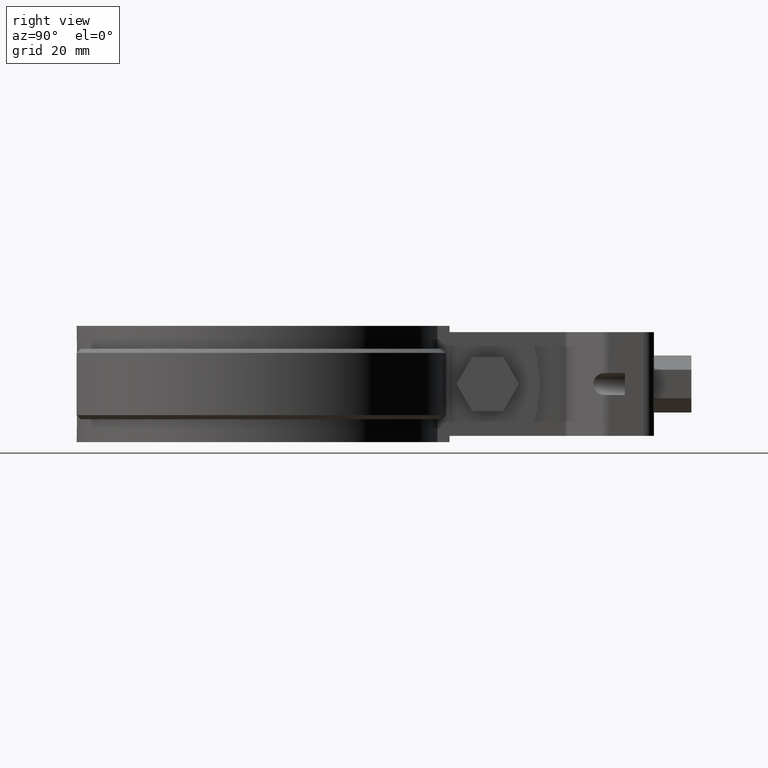
[diagram: clean part render]
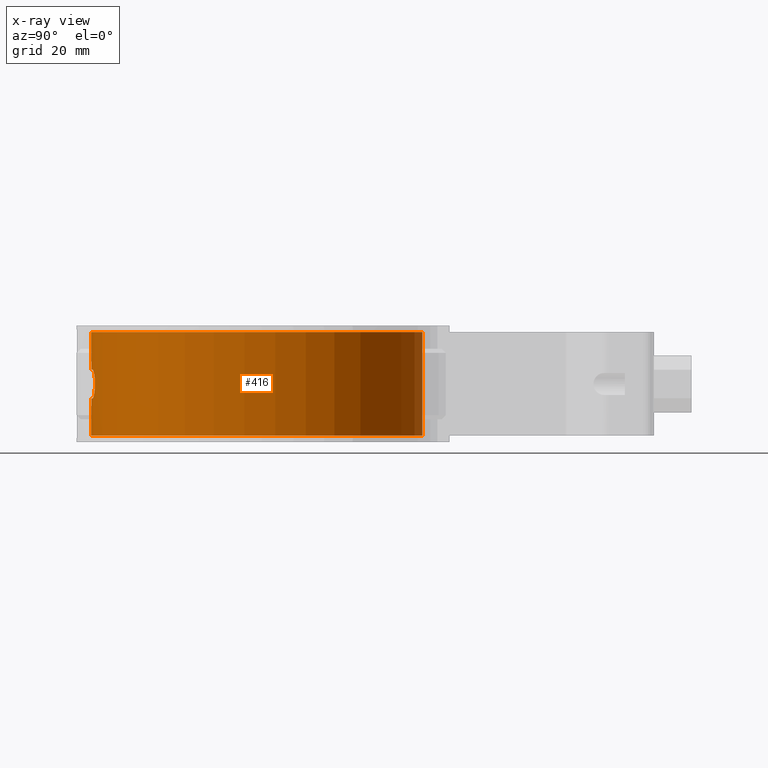
[diagram: x-ray — body ghosted, one internal face saturated and labeled with its STEP entity id]
A machine part, right view, then the same camera in x-ray: the body is ghosted and one INTERNAL B-rep face — a face not visible from any outside direction — is saturated and labeled: STEP entity #416.
In plain terms, the highlighted cylindrical surface (partial cylindrical patch) has radius 40.15 mm, axis along (0, 0, -1).
Its self-contained STEP definition (entity closure, byte-faithful):
#416 = ADVANCED_FACE( '', ( #739, #740 ), #741, .T. );
#739 = FACE_OUTER_BOUND( '', #1727, .T. );
#740 = FACE_BOUND( '', #1728, .T. );
#741 = CYLINDRICAL_SURFACE( '', #1729, 40.1500000000000 );
#1727 = EDGE_LOOP( '', ( #3363, #3364, #3365, #3366 ) );
#1728 = EDGE_LOOP( '', ( #3367, #3368, #3369, #3370, #3371, #3372, #3373, #3374, #3375, #3376, #3377, #3378, #3379, #3380, #3381, #3382 ) );
#1729 = AXIS2_PLACEMENT_3D( '', #3383, #3384, #3385 );
#3363 = ORIENTED_EDGE( '', *, *, #4587, .F. );
#3364 = ORIENTED_EDGE( '', *, *, #4585, .F. );
#3365 = ORIENTED_EDGE( '', *, *, #4588, .T. );
#3366 = ORIENTED_EDGE( '', *, *, #4421, .T. );
#3367 = ORIENTED_EDGE( '', *, *, #4465, .F. );
#3368 = ORIENTED_EDGE( '', *, *, #4581, .F. );
#3369 = ORIENTED_EDGE( '', *, *, #4429, .F. );
#3370 = ORIENTED_EDGE( '', *, *, #4580, .F. );
#3371 = ORIENTED_EDGE( '', *, *, #4579, .F. );
#3372 = ORIENTED_EDGE( '', *, *, #4577, .F. );
#3373 = ORIENTED_EDGE( '', *, *, #4575, .F. );
#3374 = ORIENTED_EDGE( '', *, *, #4573, .F. );
#3375 = ORIENTED_EDGE( '', *, *, #4571, .F. );
#3376 = ORIENTED_EDGE( '', *, *, #4569, .F. );
#3377 = ORIENTED_EDGE( '', *, *, #4567, .F. );
#3378 = ORIENTED_EDGE( '', *, *, #4449, .F. );
#3379 = ORIENTED_EDGE( '', *, *, #4446, .F. );
#3380 = ORIENTED_EDGE( '', *, *, #4440, .F. );
#3381 = ORIENTED_EDGE( '', *, *, #4437, .F. );
#3382 = ORIENTED_EDGE( '', *, *, #4443, .F. );
#3383 = CARTESIAN_POINT( '', ( 0.000000000000000, 0.000000000000000, -14.0000000000000 ) );
#3384 = DIRECTION( '', ( 0.000000000000000, 0.000000000000000, -1.00000000000000 ) );
#3385 = DIRECTION( '', ( 1.00000000000000, -6.07153216591882E-017, 0.000000000000000 ) );
#4421 = EDGE_CURVE( '', #5107, #5105, #5108, .T. );
#4429 = EDGE_CURVE( '', #5120, #5115, #5122, .T. );
#4437 = EDGE_CURVE( '', #5136, #5131, #5138, .T. );
#4440 = EDGE_CURVE( '', #5131, #5139, #5143, .F. );
#4443 = EDGE_CURVE( '', #5146, #5136, #5148, .F. );
#4446 = EDGE_CURVE( '', #5139, #5149, #5153, .T. );
#4449 = EDGE_CURVE( '', #5149, #5154, #5158, .F. );
#4465 = EDGE_CURVE( '', #5185, #5146, #5187, .T. );
#4567 = EDGE_CURVE( '', #5154, #5353, #5355, .T. );
#4569 = EDGE_CURVE( '', #5353, #5356, #5358, .F. );
#4571 = EDGE_CURVE( '', #5356, #5359, #5361, .T. );
#4573 = EDGE_CURVE( '', #5359, #5362, #5364, .F. );
#4575 = EDGE_CURVE( '', #5362, #5365, #5367, .T. );
#4577 = EDGE_CURVE( '', #5365, #5368, #5370, .F. );
#4579 = EDGE_CURVE( '', #5368, #5371, #5373, .T. );
#4580 = EDGE_CURVE( '', #5371, #5120, #5374, .F. );
#4581 = EDGE_CURVE( '', #5115, #5185, #5375, .F. );
#4585 = EDGE_CURVE( '', #5379, #5381, #5382, .T. );
#4587 = EDGE_CURVE( '', #5381, #5105, #5384, .T. );
#4588 = EDGE_CURVE( '', #5379, #5107, #5385, .T. );
#5105 = VERTEX_POINT( '', #7164 );
#5107 = VERTEX_POINT( '', #7166 );
#5108 = CIRCLE( '', #7167, 40.1500000000000 );
#5115 = VERTEX_POINT( '', #7177 );
#5120 = VERTEX_POINT( '', #7192 );
#5122 = B_SPLINE_CURVE_WITH_KNOTS( '', 3, ( #7195, #7196, #7197, #7198, #7199, #7200, #7201, #7202, #7203, #7204 ), .UNSPECIFIED., .F., .F., ( 4, 2, 2, 2, 4 ), ( 0.000000000000000, 0.000671575441678452, 0.00134315088335690, 0.00201472632503536, 0.00268630176671381 ), .UNSPECIFIED. );
#5131 = VERTEX_POINT( '', #7215 );
#5136 = VERTEX_POINT( '', #7254 );
#5138 = B_SPLINE_CURVE_WITH_KNOTS( '', 3, ( #7257, #7258, #7259, #7260, #7261, #7262, #7263, #7264, #7265, #7266, #7267, #7268, #7269, #7270, #7271, #7272, #7273, #7274, #7275, #7276, #7277, #7278, #7279, #7280, #7281, #7282, #7283, #7284, #7285, #7286, #7287, #7288, #7289, #7290 ), .UNSPECIFIED., .F., .F., ( 4, 2, 2, 2, 2, 2, 2, 2, 2, 2, 2, 2, 2, 2, 2, 2, 4 ), ( 0.000000000000000, 0.000688337356429975, 0.00137667471285995, 0.00206501206928992, 0.00275334942571990, 0.00344168678214987, 0.00413002413857985, 0.00481836149500982, 0.00550669885143979, 0.00619503620786977, 0.00688337356429974, 0.00757171092072971, 0.00826004827715969, 0.00894838563358966, 0.00963672299001963, 0.0103250603464496, 0.0110133977028796 ), .UNSPECIFIED. );
#5139 = VERTEX_POINT( '', #7291 );
#5143 = CIRCLE( '', #7296, 40.1500000000000 );
#5146 = VERTEX_POINT( '', #7299 );
#5148 = CIRCLE( '', #7302, 40.1500000000000 );
#5149 = VERTEX_POINT( '', #7303 );
#5153 = B_SPLINE_CURVE_WITH_KNOTS( '', 3, ( #7313, #7314, #7315, #7316, #7317, #7318 ), .UNSPECIFIED., .F., .F., ( 4, 2, 4 ), ( 0.000000000000000, 0.000335897798747085, 0.000671795597494171 ), .UNSPECIFIED. );
#5154 = VERTEX_POINT( '', #7319 );
#5158 = ELLIPSE( '', #7324, 182.905648859906, 40.1500000000000 );
#5185 = VERTEX_POINT( '', #7526 );
#5187 = B_SPLINE_CURVE_WITH_KNOTS( '', 3, ( #7529, #7530, #7531, #7532, #7533, #7534 ), .UNSPECIFIED., .F., .F., ( 4, 2, 4 ), ( 0.000000000000000, 0.000335898885575026, 0.000671797771150053 ), .UNSPECIFIED. );
#5353 = VERTEX_POINT( '', #8056 );
#5355 = B_SPLINE_CURVE_WITH_KNOTS( '', 3, ( #8059, #8060, #8061, #8062, #8063, #8064, #8065, #8066, #8067, #8068 ), .UNSPECIFIED., .F., .F., ( 4, 2, 2, 2, 4 ), ( 0.000000000000000, 0.000671575441678452, 0.00134315088335690, 0.00201472632503536, 0.00268630176671381 ), .UNSPECIFIED. );
#5356 = VERTEX_POINT( '', #8069 );
#5358 = ELLIPSE( '', #8072, 182.905742164324, 40.1500000000000 );
#5359 = VERTEX_POINT( '', #8073 );
#5361 = B_SPLINE_CURVE_WITH_KNOTS( '', 3, ( #8076, #8077, #8078, #8079, #8080, #8081 ), .UNSPECIFIED., .F., .F., ( 4, 2, 4 ), ( 0.000000000000000, 0.000335898885574942, 0.000671797771149884 ), .UNSPECIFIED. );
#5362 = VERTEX_POINT( '', #8082 );
#5364 = CIRCLE( '', #8085, 40.1500000000000 );
#5365 = VERTEX_POINT( '', #8086 );
#5367 = B_SPLINE_CURVE_WITH_KNOTS( '', 3, ( #8089, #8090, #8091, #8092, #8093, #8094, #8095, #8096, #8097, #8098, #8099, #8100, #8101, #8102, #8103, #8104, #8105, #8106, #8107, #8108, #8109, #8110, #8111, #8112, #8113, #8114, #8115, #8116, #8117, #8118, #8119, #8120, #8121, #8122 ), .UNSPECIFIED., .F., .F., ( 4, 2, 2, 2, 2, 2, 2, 2, 2, 2, 2, 2, 2, 2, 2, 2, 4 ), ( 0.000000000000000, 0.000688337329262038, 0.00137667465852408, 0.00206501198778611, 0.00275334931704815, 0.00344168664631019, 0.00413002397557223, 0.00481836130483426, 0.00550669863409630, 0.00619503596335834, 0.00688337329262038, 0.00757171062188242, 0.00826004795114445, 0.00894838528040649, 0.00963672260966853, 0.0103250599389306, 0.0110133972681926 ), .UNSPECIFIED. );
#5368 = VERTEX_POINT( '', #8123 );
#5370 = CIRCLE( '', #8126, 40.1500000000000 );
#5371 = VERTEX_POINT( '', #8127 );
#5373 = B_SPLINE_CURVE_WITH_KNOTS( '', 3, ( #8130, #8131, #8132, #8133, #8134, #8135 ), .UNSPECIFIED., .F., .F., ( 4, 2, 4 ), ( 0.000000000000000, 0.000335897719169336, 0.000671795438338672 ), .UNSPECIFIED. );
#5374 = ELLIPSE( '', #8136, 182.905648859919, 40.1500000000000 );
#5375 = ELLIPSE( '', #8137, 182.905742164363, 40.1500000000000 );
#5379 = VERTEX_POINT( '', #8143 );
#5381 = VERTEX_POINT( '', #8145 );
#5382 = CIRCLE( '', #8146, 40.1500000000000 );
#5384 = LINE( '', #8148, #8149 );
#5385 = LINE( '', #8150, #8151 );
#7164 = CARTESIAN_POINT( '', ( -6.51332560834300, 39.6181661554356, 12.5000000000000 ) );
#7166 = CARTESIAN_POINT( '', ( 6.51332560834299, 39.6181661554356, 12.5000000000000 ) );
#7167 = AXIS2_PLACEMENT_3D( '', #8995, #8996, #8997 );
#7177 = CARTESIAN_POINT( '', ( -0.975610000000007, -40.1381450135392, 4.71951199999999 ) );
#7192 = CARTESIAN_POINT( '', ( 0.975609757981830, -40.1381450194217, 4.71951218674745 ) );
#7195 = CARTESIAN_POINT( '', ( 0.975609757981830, -40.1381450194217, 4.71951218674745 ) );
#7196 = CARTESIAN_POINT( '', ( 0.925763103201913, -40.1393566071217, 4.94105278453070 ) );
#7197 = CARTESIAN_POINT( '', ( 0.802005694054189, -40.1423807442753, 5.13901842955320 ) );
#7198 = CARTESIAN_POINT( '', ( 0.447394136195560, -40.1478988670461, 5.42271131765126 ) );
#7199 = CARTESIAN_POINT( '', ( 0.227081605828657, -40.1500000027403, 5.50000009076298 ) );
#7200 = CARTESIAN_POINT( '', ( -0.227082574832846, -40.1499999972597, 5.49999991610412 ) );
#7201 = CARTESIAN_POINT( '', ( -0.447406558810134, -40.1478987000226, 5.42270368064493 ) );
#7202 = CARTESIAN_POINT( '', ( -0.802005172077475, -40.1423807261117, 5.13901686586167 ) );
#7203 = CARTESIAN_POINT( '', ( -0.925763382732391, -40.1393566006280, 4.94105262907644 ) );
#7204 = CARTESIAN_POINT( '', ( -0.975610000000007, -40.1381450135391, 4.71951199999999 ) );
#7215 = CARTESIAN_POINT( '', ( -4.99999999999995, -39.8374509726714, -3.49999999999999 ) );
#7254 = CARTESIAN_POINT( '', ( -4.99999999999995, -39.8374509726714, 3.49999999999999 ) );
#7257 = CARTESIAN_POINT( '', ( -4.99999999999995, -39.8374509726714, 3.49999999999999 ) );
#7258 = CARTESIAN_POINT( '', ( -5.23095860494482, -39.8084633493038, 3.49999999999999 ) );
#7259 = CARTESIAN_POINT( '', ( -5.45781297076318, -39.7779524642130, 3.47736556748964 ) );
#7260 = CARTESIAN_POINT( '', ( -5.90372421837641, -39.7142199347082, 3.38894468494546 ) );
#7261 = CARTESIAN_POINT( '', ( -6.12501644056399, -39.6806304739925, 3.32213368201289 ) );
#7262 = CARTESIAN_POINT( '', ( -6.54749251271770, -39.6131115037260, 3.14761870064422 ) );
#7263 = CARTESIAN_POINT( '', ( -6.74782653425954, -39.5793683268156, 3.04087849271291 ) );
#7264 = CARTESIAN_POINT( '', ( -7.12705538734702, -39.5128414770676, 2.78881190203172 ) );
#7265 = CARTESIAN_POINT( '', ( -7.30699771686771, -39.4798342861366, 2.64190872861820 ) );
#7266 = CARTESIAN_POINT( '', ( -7.63008020934946, -39.4186682536842, 2.32047593285882 ) );
#7267 = CARTESIAN_POINT( '', ( -7.77520246741427, -39.3901746414895, 2.14501047192483 ) );
#7268 = CARTESIAN_POINT( '', ( -8.03185666339945, -39.3386439806323, 1.76370597515165 ) );
#7269 = CARTESIAN_POINT( '', ( -8.14181611065924, -39.3159182752970, 1.55925557516007 ) );
#7270 = CARTESIAN_POINT( '', ( -8.31798764170714, -39.2790234222037, 1.13721164485078 ) );
#7271 = CARTESIAN_POINT( '', ( -8.38574167511884, -39.2645390128848, 0.916882287492957 ) );
#7272 = CARTESIAN_POINT( '', ( -8.47719385698053, -39.2448961222647, 0.461564622353175 ) );
#7273 = CARTESIAN_POINT( '', ( -8.49978618145731, -39.2399813317577, 0.232891640253044 ) );
#7274 = CARTESIAN_POINT( '', ( -8.50021082580472, -39.2398893469905, -0.226418737266414 ) );
#7275 = CARTESIAN_POINT( '', ( -8.47731854301144, -39.2448684643871, -0.459702949250360 ) );
#7276 = CARTESIAN_POINT( '', ( -8.38706339909590, -39.2642559843718, -0.911522981827331 ) );
#7277 = CARTESIAN_POINT( '', ( -8.32031352874219, -39.2785313050527, -1.13069012075308 ) );
#7278 = CARTESIAN_POINT( '', ( -8.14371721399383, -39.3155250332115, -1.55562828014230 ) );
#7279 = CARTESIAN_POINT( '', ( -8.03342513170298, -39.3383199762391, -1.76080986097333 ) );
#7280 = CARTESIAN_POINT( '', ( -7.77898464578656, -39.3894241615725, -2.13994552533918 ) );
#7281 = CARTESIAN_POINT( '', ( -7.63379203900635, -39.4179573308168, -2.31653087494202 ) );
#7282 = CARTESIAN_POINT( '', ( -7.30708660946897, -39.4798255607926, -2.64206955157897 ) );
#7283 = CARTESIAN_POINT( '', ( -7.13061900667858, -39.5121959119356, -2.78605609428601 ) );
#7284 = CARTESIAN_POINT( '', ( -6.75245701559200, -39.5785759907323, -3.03817952911609 ) );
#7285 = CARTESIAN_POINT( '', ( -6.54837063110575, -39.6129652578209, -3.14717295202816 ) );
#7286 = CARTESIAN_POINT( '', ( -6.12629712903811, -39.6804316751518, -3.32168725479000 ) );
#7287 = CARTESIAN_POINT( '', ( -5.90899761065161, -39.7134392243430, -3.38758058043028 ) );
#7288 = CARTESIAN_POINT( '', ( -5.46185115940373, -39.7774017464791, -3.47687669231663 ) );
#7289 = CARTESIAN_POINT( '', ( -5.23094629206818, -39.8084648946934, -3.49999999999999 ) );
#7290 = CARTESIAN_POINT( '', ( -4.99999999999995, -39.8374509726714, -3.49999999999999 ) );
#7291 = CARTESIAN_POINT( '', ( -1.64999999999996, -40.1160815633830, -3.50000000000000 ) );
#7296 = AXIS2_PLACEMENT_3D( '', #9020, #9021, #9022 );
#7299 = CARTESIAN_POINT( '', ( -1.65000998557365, -40.1160811526688, 3.50000000000000 ) );
#7302 = AXIS2_PLACEMENT_3D( '', #9027, #9028, #9029 );
#7303 = CARTESIAN_POINT( '', ( -1.16219500000001, -40.1331758372294, -3.89024399999999 ) );
#7313 = CARTESIAN_POINT( '', ( -1.64999999999996, -40.1160815633830, -3.50000000000000 ) );
#7314 = CARTESIAN_POINT( '', ( -1.53651884766713, -40.1207491154981, -3.49999999951295 ) );
#7315 = CARTESIAN_POINT( '', ( -1.42638050992229, -40.1247530663931, -3.53860710319743 ) );
#7316 = CARTESIAN_POINT( '', ( -1.24905299688644, -40.1306645423307, -3.68042118917928 ) );
#7317 = CARTESIAN_POINT( '', ( -1.18712650433726, -40.1324538592380, -3.77943731183597 ) );
#7318 = CARTESIAN_POINT( '', ( -1.16219500000001, -40.1331758372295, -3.89024399999999 ) );
#7319 = CARTESIAN_POINT( '', ( -0.975609757981835, -40.1381450194217, -4.71951218674743 ) );
#7324 = AXIS2_PLACEMENT_3D( '', #9035, #9036, #9037 );
#7526 = CARTESIAN_POINT( '', ( -1.16219512200782, -40.1331758336962, 3.89024390218754 ) );
#7529 = CARTESIAN_POINT( '', ( -1.16219512100910, -40.1331758337252, 3.89024390662629 ) );
#7530 = CARTESIAN_POINT( '', ( -1.18712661974119, -40.1324538558208, 3.77943724115345 ) );
#7531 = CARTESIAN_POINT( '', ( -1.24904982974928, -40.1306646447970, 3.68042431142773 ) );
#7532 = CARTESIAN_POINT( '', ( -1.42638086073695, -40.1247530578130, 3.53860630529693 ) );
#7533 = CARTESIAN_POINT( '', ( -1.53651887567475, -40.1207491143462, 3.50000000000000 ) );
#7534 = CARTESIAN_POINT( '', ( -1.65000000000002, -40.1160815633831, 3.50000000000000 ) );
#8056 = CARTESIAN_POINT( '', ( 0.975609999999998, -40.1381450135392, -4.71951200000000 ) );
#8059 = CARTESIAN_POINT( '', ( -0.975609757981835, -40.1381450194217, -4.71951218674743 ) );
#8060 = CARTESIAN_POINT( '', ( -0.925763103201921, -40.1393566071217, -4.94105278453069 ) );
#8061 = CARTESIAN_POINT( '', ( -0.802005694054198, -40.1423807442753, -5.13901842955318 ) );
#8062 = CARTESIAN_POINT( '', ( -0.447394136195574, -40.1478988670461, -5.42271131765126 ) );
#8063 = CARTESIAN_POINT( '', ( -0.227081605828673, -40.1500000027403, -5.50000009076297 ) );
#8064 = CARTESIAN_POINT( '', ( 0.227082574832831, -40.1499999972597, -5.49999991610413 ) );
#8065 = CARTESIAN_POINT( '', ( 0.447406558810120, -40.1478987000226, -5.42270368064494 ) );
#8066 = CARTESIAN_POINT( '', ( 0.802005172077463, -40.1423807261117, -5.13901686586167 ) );
#8067 = CARTESIAN_POINT( '', ( 0.925763382732379, -40.1393566006280, -4.94105262907645 ) );
#8068 = CARTESIAN_POINT( '', ( 0.975609999999998, -40.1381450135391, -4.71951200000000 ) );
#8069 = CARTESIAN_POINT( '', ( 1.16219512100914, -40.1331758337252, -3.89024390662629 ) );
#8072 = AXIS2_PLACEMENT_3D( '', #9183, #9184, #9185 );
#8073 = CARTESIAN_POINT( '', ( 1.65000000000003, -40.1160815633830, -3.49999999999999 ) );
#8076 = CARTESIAN_POINT( '', ( 1.16219512100914, -40.1331758337252, -3.89024390662629 ) );
#8077 = CARTESIAN_POINT( '', ( 1.18712661974122, -40.1324538558208, -3.77943724115347 ) );
#8078 = CARTESIAN_POINT( '', ( 1.24904982974928, -40.1306646447970, -3.68042431142778 ) );
#8079 = CARTESIAN_POINT( '', ( 1.42638086073690, -40.1247530578130, -3.53860630529699 ) );
#8080 = CARTESIAN_POINT( '', ( 1.53651887567479, -40.1207491143462, -3.50000000000002 ) );
#8081 = CARTESIAN_POINT( '', ( 1.65000000000003, -40.1160815633831, -3.50000000000002 ) );
#8082 = CARTESIAN_POINT( '', ( 5.00000044733089, -39.8374509165269, -3.49999999999999 ) );
#8085 = AXIS2_PLACEMENT_3D( '', #9188, #9189, #9190 );
#8086 = CARTESIAN_POINT( '', ( 5.00000000000005, -39.8374509726714, 3.50000000000000 ) );
#8089 = CARTESIAN_POINT( '', ( 5.00000044733089, -39.8374509165269, -3.49999999999999 ) );
#8090 = CARTESIAN_POINT( '', ( 5.23095904284814, -39.8084632917082, -3.49999997077358 ) );
#8091 = CARTESIAN_POINT( '', ( 5.45781339659013, -39.7779524057066, -3.47736551055169 ) );
#8092 = CARTESIAN_POINT( '', ( 5.90372461557896, -39.7142198755819, -3.38894457868282 ) );
#8093 = CARTESIAN_POINT( '', ( 6.12501682065867, -39.6806304152252, -3.32213355311184 ) );
#8094 = CARTESIAN_POINT( '', ( 6.54749285677823, -39.6131114467607, -3.14761853041377 ) );
#8095 = CARTESIAN_POINT( '', ( 6.74782685899012, -39.5793682713514, -3.04087830510302 ) );
#8096 = CARTESIAN_POINT( '', ( 7.12705567051453, -39.5128414258903, -2.78881168558283 ) );
#8097 = CARTESIAN_POINT( '', ( 7.30699797861348, -39.4798342376001, -2.64190849999459 ) );
#8098 = CARTESIAN_POINT( '', ( 7.63008042726410, -39.4186682114113, -2.32047568427144 ) );
#8099 = CARTESIAN_POINT( '', ( 7.77520266334605, -39.3901746027391, -2.14501021701762 ) );
#8100 = CARTESIAN_POINT( '', ( 8.03185681449030, -39.3386439497080, -1.76370571449662 ) );
#8101 = CARTESIAN_POINT( '', ( 8.14181624133898, -39.3159182481864, -1.55925531113451 ) );
#8102 = CARTESIAN_POINT( '', ( 8.31798773081204, -39.2790234032857, -1.13721138235150 ) );
#8103 = CARTESIAN_POINT( '', ( 8.38574174355353, -39.2645389982473, -0.916882032775492 ) );
#8104 = CARTESIAN_POINT( '', ( 8.47719388937391, -39.2448961152456, -0.461564375073776 ) );
#8105 = CARTESIAN_POINT( '', ( 8.49978619667144, -39.2399813284621, -0.232891399735694 ) );
#8106 = CARTESIAN_POINT( '', ( 8.50021081101746, -39.2398893501937, 0.226418958243930 ) );
#8107 = CARTESIAN_POINT( '', ( 8.47731851481216, -39.2448684704921, 0.459703157574320 ) );
#8108 = CARTESIAN_POINT( '', ( 8.38706334822708, -39.2642559952513, 0.911523169321746 ) );
#8109 = CARTESIAN_POINT( '', ( 8.32031346867799, -39.2785313177909, 1.13069029547550 ) );
#8110 = CARTESIAN_POINT( '', ( 8.14371714121275, -39.3155250483020, 1.55562842508181 ) );
#8111 = CARTESIAN_POINT( '', ( 8.03342505326523, -39.3383199922666, 1.76080999477712 ) );
#8112 = CARTESIAN_POINT( '', ( 7.77898456164721, -39.3894241781985, 2.13994563378794 ) );
#8113 = CARTESIAN_POINT( '', ( 7.63379195948778, -39.4179573462202, 2.31653096462968 ) );
#8114 = CARTESIAN_POINT( '', ( 7.30708652816376, -39.4798255758445, 2.64206962214098 ) );
#8115 = CARTESIAN_POINT( '', ( 7.13061892723623, -39.5121959262466, 2.78605615434060 ) );
#8116 = CARTESIAN_POINT( '', ( 6.75245694642353, -39.5785760025074, 3.03817956814161 ) );
#8117 = CARTESIAN_POINT( '', ( 6.54837057172783, -39.6129652676105, 3.14717298071497 ) );
#8118 = CARTESIAN_POINT( '', ( 6.12629707910306, -39.6804316828353, 3.32168727130082 ) );
#8119 = CARTESIAN_POINT( '', ( 5.90899756837397, -39.7134392305702, 3.38758059101687 ) );
#8120 = CARTESIAN_POINT( '', ( 5.46185113913602, -39.7774017491988, 3.47687669422055 ) );
#8121 = CARTESIAN_POINT( '', ( 5.23094628247947, -39.8084648958969, 3.50000000000000 ) );
#8122 = CARTESIAN_POINT( '', ( 5.00000000000005, -39.8374509726714, 3.50000000000000 ) );
#8123 = CARTESIAN_POINT( '', ( 1.64999985312154, -40.1160815694242, 3.50000000000001 ) );
#8126 = AXIS2_PLACEMENT_3D( '', #9193, #9194, #9195 );
#8127 = CARTESIAN_POINT( '', ( 1.16219500218491, -40.1331758371661, 3.89024399028924 ) );
#8130 = CARTESIAN_POINT( '', ( 1.64999985312154, -40.1160815694242, 3.50000000000001 ) );
#8131 = CARTESIAN_POINT( '', ( 1.53651872765445, -40.1207491200181, 3.50000003282549 ) );
#8132 = CARTESIAN_POINT( '', ( 1.42638042536325, -40.1247530693264, 3.53860715157177 ) );
#8133 = CARTESIAN_POINT( '', ( 1.24905297794905, -40.1306645428475, 3.68042122357414 ) );
#8134 = CARTESIAN_POINT( '', ( 1.18712650281714, -40.1324538592806, 3.77943732888697 ) );
#8135 = CARTESIAN_POINT( '', ( 1.16219500218491, -40.1331758371662, 3.89024399028924 ) );
#8136 = AXIS2_PLACEMENT_3D( '', #9197, #9198, #9199 );
#8137 = AXIS2_PLACEMENT_3D( '', #9200, #9201, #9202 );
#8143 = CARTESIAN_POINT( '', ( 6.51332560834301, 39.6181661554356, -12.5000000000000 ) );
#8145 = CARTESIAN_POINT( '', ( -6.51332560834300, 39.6181661554356, -12.5000000000000 ) );
#8146 = AXIS2_PLACEMENT_3D( '', #9208, #9209, #9210 );
#8148 = CARTESIAN_POINT( '', ( -6.51332560834300, 39.6181661554356, -14.0000000000000 ) );
#8149 = VECTOR( '', #9214, 1000.00000000000 );
#8150 = CARTESIAN_POINT( '', ( 6.51332560834301, 39.6181661554356, -14.0000000000000 ) );
#8151 = VECTOR( '', #9215, 1000.00000000000 );
#8995 = CARTESIAN_POINT( '', ( 0.000000000000000, 0.000000000000000, 12.5000000000000 ) );
#8996 = DIRECTION( '', ( 0.000000000000000, 0.000000000000000, -1.00000000000000 ) );
#8997 = DIRECTION( '', ( 1.00000000000000, 0.000000000000000, 0.000000000000000 ) );
#9020 = CARTESIAN_POINT( '', ( 0.000000000000000, 0.000000000000000, -3.49999999999999 ) );
#9021 = DIRECTION( '', ( -1.29456975819164E-016, -1.13071486621196E-017, -1.00000000000000 ) );
#9022 = DIRECTION( '', ( -1.00000000000000, 0.000000000000000, 1.29456975819164E-016 ) );
#9027 = CARTESIAN_POINT( '', ( 0.000000000000000, 0.000000000000000, 3.50000000000000 ) );
#9028 = DIRECTION( '', ( 1.29456975819168E-016, 1.13071486621196E-017, 1.00000000000000 ) );
#9029 = DIRECTION( '', ( 1.00000000000000, 0.000000000000000, -1.29456975819168E-016 ) );
#9035 = CARTESIAN_POINT( '', ( 0.000000000000000, 0.000000000000000, -9.05555787944973 ) );
#9036 = DIRECTION( '', ( -0.975609781292646, 8.75736986791567E-018, -0.219512083143765 ) );
#9037 = DIRECTION( '', ( -0.219512083143765, 1.97040716424508E-018, 0.975609781292646 ) );
#9183 = CARTESIAN_POINT( '', ( 0.000000000000000, 0.000000000000000, -9.05556109223549 ) );
#9184 = DIRECTION( '', ( 0.975609806487710, -1.37214804064958E-017, -0.219511971165612 ) );
#9185 = DIRECTION( '', ( 0.219511971165612, -3.08732978216343E-018, 0.975609806487710 ) );
#9188 = CARTESIAN_POINT( '', ( 0.000000000000000, 0.000000000000000, -3.49999999999999 ) );
#9189 = DIRECTION( '', ( -1.29456975819164E-016, -1.13071486621196E-017, -1.00000000000000 ) );
#9190 = DIRECTION( '', ( -1.00000000000000, 0.000000000000000, 1.29456975819164E-016 ) );
#9193 = CARTESIAN_POINT( '', ( 0.000000000000000, 0.000000000000000, 3.50000000000000 ) );
#9194 = DIRECTION( '', ( 1.29456975819166E-016, 1.13071486621196E-017, 1.00000000000000 ) );
#9195 = DIRECTION( '', ( 1.00000000000000, 0.000000000000000, -1.29456975819166E-016 ) );
#9197 = CARTESIAN_POINT( '', ( 0.000000000000000, 0.000000000000000, 9.05555787945003 ) );
#9198 = DIRECTION( '', ( 0.975609781292650, -8.75736986791588E-018, 0.219512083143749 ) );
#9199 = DIRECTION( '', ( -0.219512083143749, 1.97040716424498E-018, 0.975609781292650 ) );
#9200 = CARTESIAN_POINT( '', ( 0.000000000000000, 0.000000000000000, 9.05556109223649 ) );
#9201 = DIRECTION( '', ( -0.975609806487721, 1.37214804064953E-017, 0.219511971165565 ) );
#9202 = DIRECTION( '', ( 0.219511971165565, -3.08732978216265E-018, 0.975609806487721 ) );
#9208 = CARTESIAN_POINT( '', ( 0.000000000000000, 0.000000000000000, -12.5000000000000 ) );
#9209 = DIRECTION( '', ( 0.000000000000000, 0.000000000000000, -1.00000000000000 ) );
#9210 = DIRECTION( '', ( 1.00000000000000, 0.000000000000000, 0.000000000000000 ) );
#9214 = DIRECTION( '', ( 0.000000000000000, 0.000000000000000, 1.00000000000000 ) );
#9215 = DIRECTION( '', ( 0.000000000000000, 0.000000000000000, 1.00000000000000 ) );